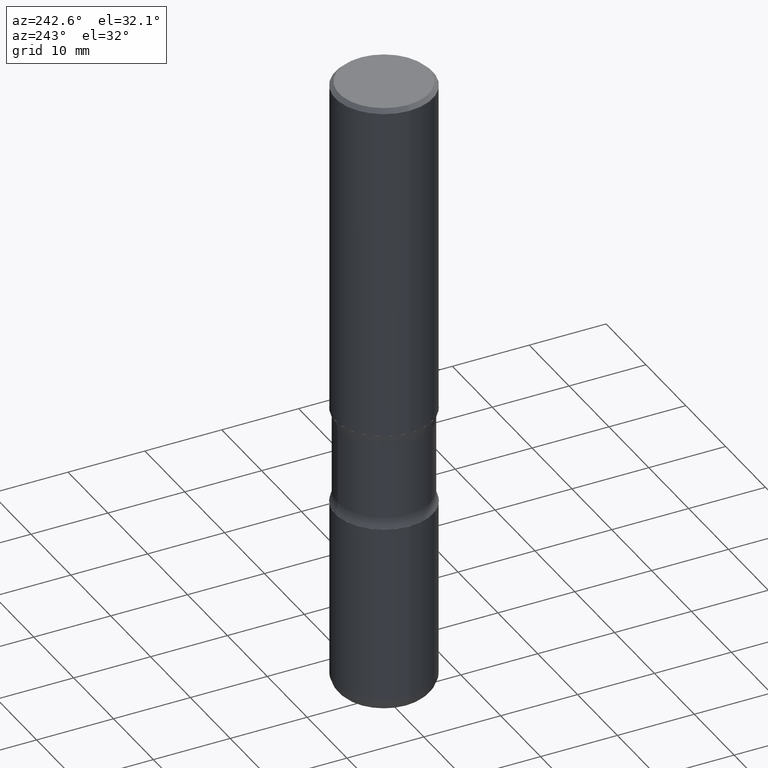
[diagram: clean part render]
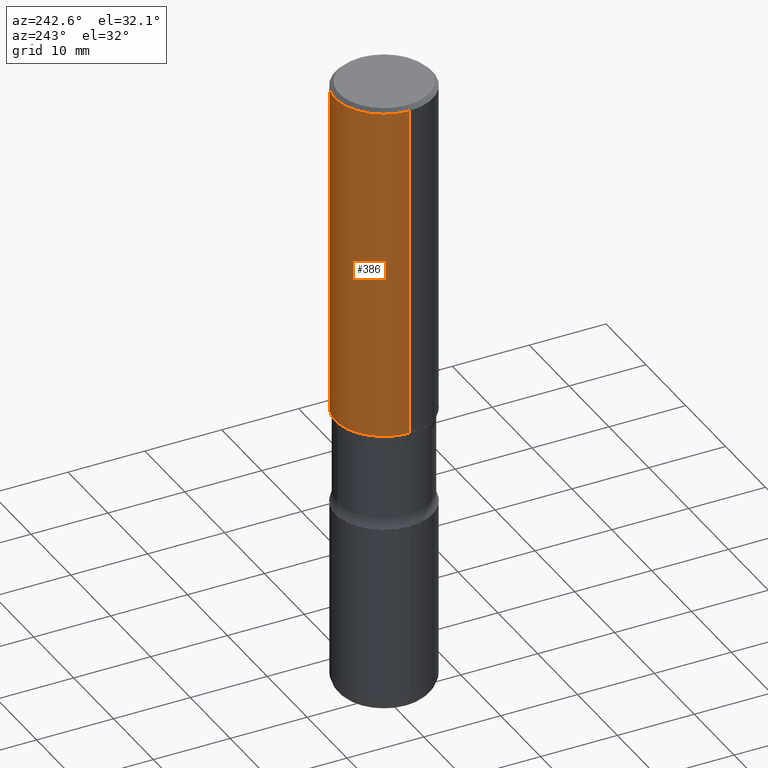
[diagram: same view with one face highlighted and labeled with its STEP entity id]
A machine part, auxiliary view. The second image highlights one B-rep face of the part: STEP entity #386.
In plain terms, the highlighted cylindrical surface (partial cylindrical patch) has radius 6.35 mm, axis along (-0, 0, 1).
Its self-contained STEP definition (entity closure, byte-faithful):
#12 = CYLINDRICAL_SURFACE ( 'NONE', #499, 0.2500000000000005551 ) ;
#36 = CARTESIAN_POINT ( 'NONE',  ( 0.2500000000000003886, -1.784954126219748555E-15, -0.02000000000000000042 ) ) ;
#56 = CARTESIAN_POINT ( 'NONE',  ( 0.2500000000000005551, -1.745740669421570622E-15, 1.219044193948986471E-29 ) ) ;
#60 = LINE ( 'NONE', #56, #63 ) ;
#62 = VERTEX_POINT ( 'NONE', #456 ) ;
#63 = VECTOR ( 'NONE', #396, 39.37007874015748143 ) ;
#71 = DIRECTION ( 'NONE',  ( -2.445468806185136597E-29, 3.491481338843145583E-15, 1.000000000000000000 ) ) ;
#73 = AXIS2_PLACEMENT_3D ( 'NONE', #384, #71, #422 ) ;
#75 = VERTEX_POINT ( 'NONE', #152 ) ;
#112 = DIRECTION ( 'NONE',  ( -2.445468806185136597E-29, 3.491481338843145583E-15, 1.000000000000000000 ) ) ;
#137 = EDGE_CURVE ( 'NONE', #168, #497, #533, .T. ) ;
#138 = AXIS2_PLACEMENT_3D ( 'NONE', #282, #112, #248 ) ;
#141 = CARTESIAN_POINT ( 'NONE',  ( 0.000000000000000000, 0.000000000000000000, 0.000000000000000000 ) ) ;
#143 = EDGE_CURVE ( 'NONE', #75, #62, #517, .T. ) ;
#146 = DIRECTION ( 'NONE',  ( 1.000000000000000000, -6.982962677686266711E-15, 4.876176775795935232E-29 ) ) ;
#152 = CARTESIAN_POINT ( 'NONE',  ( 0.2500000000000006661, -7.855833012397080026E-15, -1.750000000000001332 ) ) ;
#168 = VERTEX_POINT ( 'NONE', #36 ) ;
#190 = FACE_OUTER_BOUND ( 'NONE', #391, .T. ) ;
#248 = DIRECTION ( 'NONE',  ( 1.000000000000000000, -6.982962677686267499E-15, 0.000000000000000000 ) ) ;
#265 = LINE ( 'NONE', #530, #275 ) ;
#275 = VECTOR ( 'NONE', #527, 39.37007874015748143 ) ;
#282 = CARTESIAN_POINT ( 'NONE',  ( 4.890937612370273159E-31, -6.982962677686291609E-17, -0.02000000000000000042 ) ) ;
#311 = ORIENTED_EDGE ( 'NONE', *, *, #445, .T. ) ;
#331 = ORIENTED_EDGE ( 'NONE', *, *, #143, .T. ) ;
#333 = ORIENTED_EDGE ( 'NONE', *, *, #137, .F. ) ;
#344 = CARTESIAN_POINT ( 'NONE',  ( -0.2500000000000003886, 1.675911042644706732E-15, -0.02000000000000000042 ) ) ;
#384 = CARTESIAN_POINT ( 'NONE',  ( 4.279570410823991847E-29, -6.110092342975509404E-15, -1.750000000000001332 ) ) ;
#386 = ADVANCED_FACE ( 'NONE', ( #190 ), #12, .T. ) ;
#391 = EDGE_LOOP ( 'NONE', ( #331, #311, #333, #532 ) ) ;
#396 = DIRECTION ( 'NONE',  ( -2.445468806185136877E-29, 3.491481338843145188E-15, 1.000000000000000000 ) ) ;
#408 = DIRECTION ( 'NONE',  ( -2.445468806185136597E-29, 3.491481338843145583E-15, 1.000000000000000000 ) ) ;
#422 = DIRECTION ( 'NONE',  ( 1.000000000000000000, -6.982962677686267499E-15, 0.000000000000000000 ) ) ;
#445 = EDGE_CURVE ( 'NONE', #62, #497, #265, .T. ) ;
#456 = CARTESIAN_POINT ( 'NONE',  ( -0.2500000000000006661, -1.313604145475929576E-15, -1.750000000000001332 ) ) ;
#473 = EDGE_CURVE ( 'NONE', #75, #168, #60, .T. ) ;
#497 = VERTEX_POINT ( 'NONE', #344 ) ;
#499 = AXIS2_PLACEMENT_3D ( 'NONE', #141, #408, #146 ) ;
#517 = CIRCLE ( 'NONE', #73, 0.2500000000000006661 ) ;
#527 = DIRECTION ( 'NONE',  ( -2.445468806185136877E-29, 3.491481338843145188E-15, 1.000000000000000000 ) ) ;
#530 = CARTESIAN_POINT ( 'NONE',  ( -0.2500000000000005551, 1.776356839400254409E-15, -1.229733772563729108E-29 ) ) ;
#532 = ORIENTED_EDGE ( 'NONE', *, *, #473, .F. ) ;
#533 = CIRCLE ( 'NONE', #138, 0.2500000000000003886 ) ;